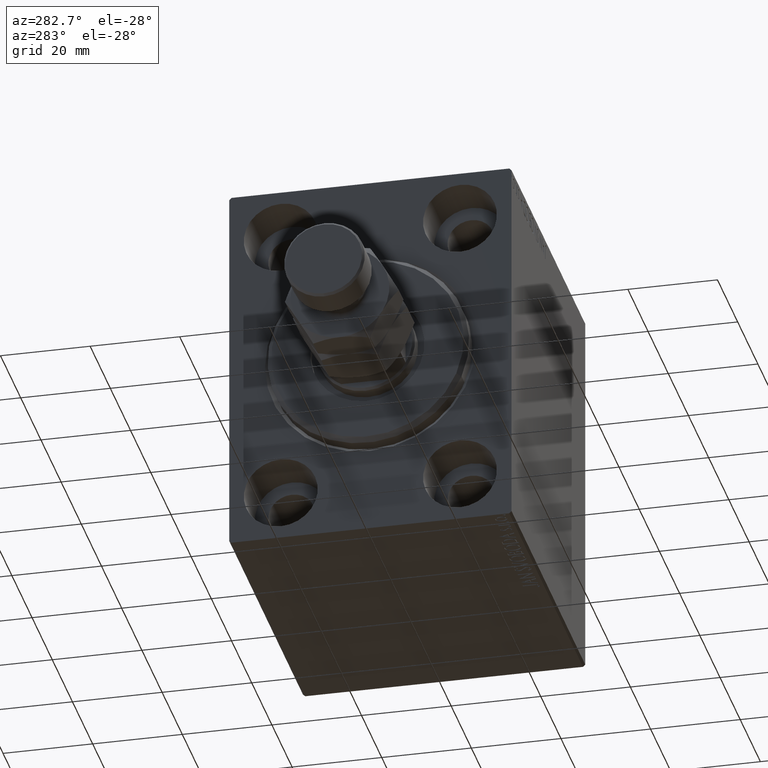
[diagram: clean part render]
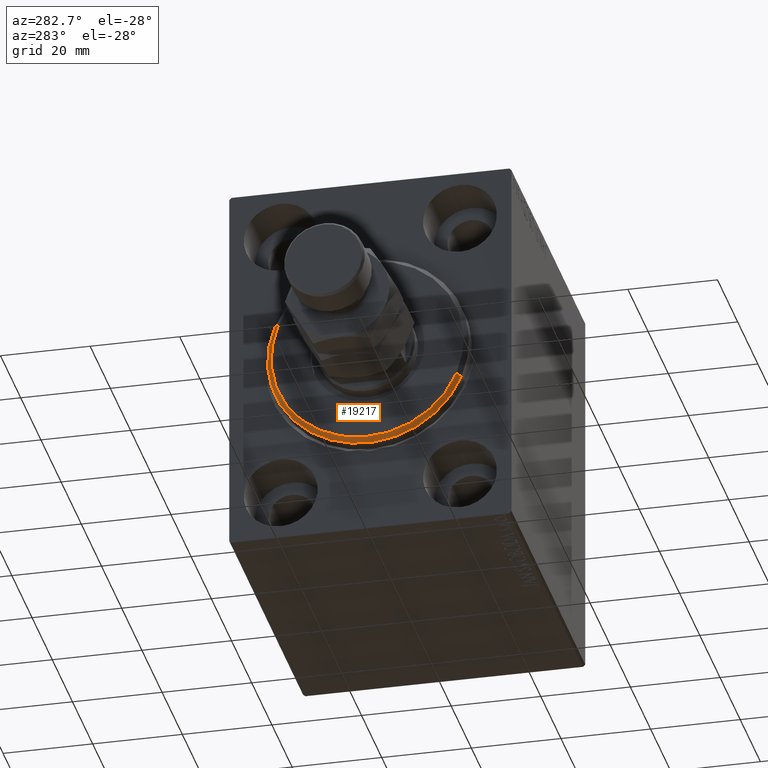
[diagram: same view with one face highlighted and labeled with its STEP entity id]
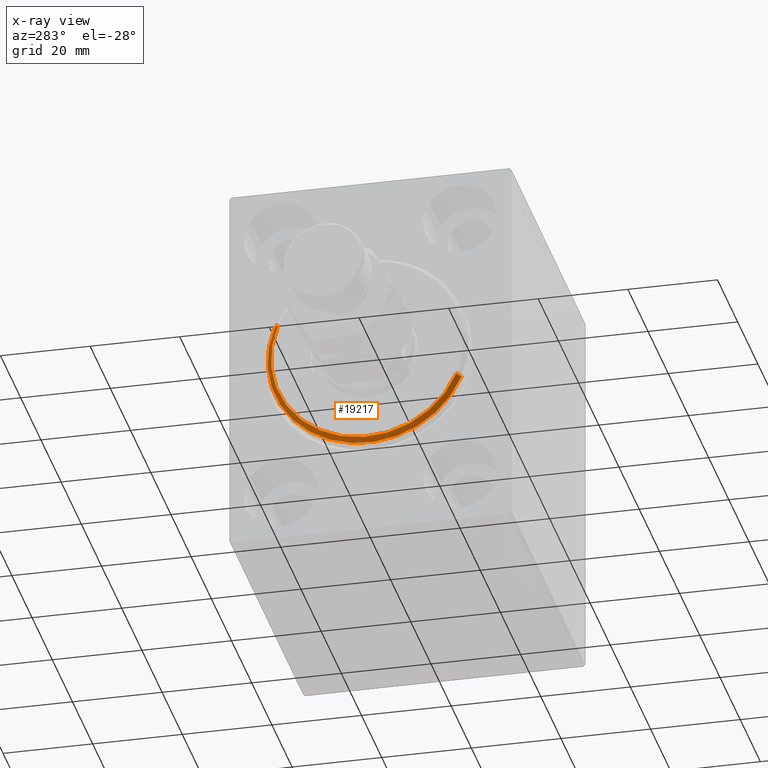
[diagram: x-ray of the same camera — body ghosted, the highlighted face saturated]
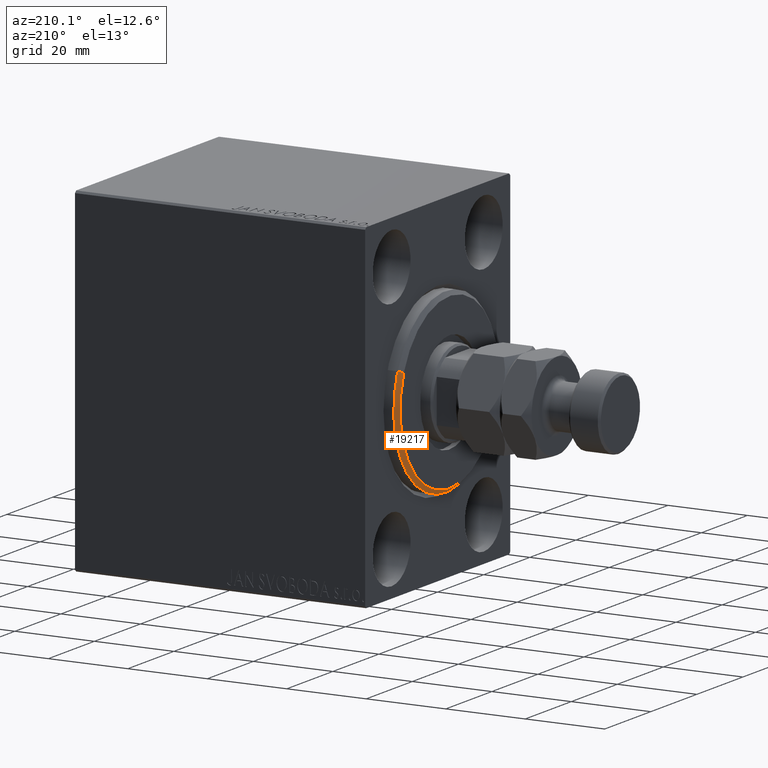
[diagram: same view with one face highlighted and labeled with its STEP entity id]
A machine part, auxiliary view. The second image highlights one B-rep face of the part: STEP entity #19217.
The next image is the same camera in x-ray: the body ghosted, the highlighted face saturated — about 0% of this face is hidden behind the body in this view.
A second angle (auxiliary view) of the same face is appended — the face is thin or edge-on in the first view.
In plain terms, the highlighted conical surface has half-angle 45 deg.
Its self-contained STEP definition (entity closure, byte-faithful):
#404 = VECTOR ( 'NONE', #23586, 1000.000000000000000 ) ;
#1020 = EDGE_CURVE ( 'NONE', #19093, #23329, #1569, .T. ) ;
#1505 = ORIENTED_EDGE ( 'NONE', *, *, #30005, .F. ) ;
#1569 = CIRCLE ( 'NONE', #24260, 21.50000000000000355 ) ;
#3224 = CARTESIAN_POINT ( 'NONE',  ( 3.000000000000000000, 0.000000000000000000, 21.50000000000000355 ) ) ;
#4687 = LINE ( 'NONE', #23026, #42412 ) ;
#7160 = CIRCLE ( 'NONE', #17402, 22.50000000000000355 ) ;
#9717 = ORIENTED_EDGE ( 'NONE', *, *, #33978, .F. ) ;
#10906 = CARTESIAN_POINT ( 'NONE',  ( 1.999999999999992228, 0.000000000000000000, 0.000000000000000000 ) ) ;
#14846 = CARTESIAN_POINT ( 'NONE',  ( 3.000000000000000000, 2.694222958124177598E-15, -21.50000000000000355 ) ) ;
#15690 = CONICAL_SURFACE ( 'NONE', #21527, 21.50000000000000355, 0.7853981633974431720 ) ;
#17402 = AXIS2_PLACEMENT_3D ( 'NONE', #10906, #39122, #38673 ) ;
#18139 = CARTESIAN_POINT ( 'NONE',  ( 1.999999999999992228, 2.755455298081545172E-15, -22.50000000000000355 ) ) ;
#19093 = VERTEX_POINT ( 'NONE', #14846 ) ;
#19217 = ADVANCED_FACE ( 'NONE', ( #20749 ), #15690, .T. ) ;
#20371 = LINE ( 'NONE', #27033, #404 ) ;
#20749 = FACE_OUTER_BOUND ( 'NONE', #35752, .T. ) ;
#21527 = AXIS2_PLACEMENT_3D ( 'NONE', #31323, #41887, #28335 ) ;
#22785 = CARTESIAN_POINT ( 'NONE',  ( 3.000000000000000000, 0.000000000000000000, 0.000000000000000000 ) ) ;
#23026 = CARTESIAN_POINT ( 'NONE',  ( 3.000000000000000000, 2.632990618166810024E-15, -21.50000000000000355 ) ) ;
#23329 = VERTEX_POINT ( 'NONE', #3224 ) ;
#23586 = DIRECTION ( 'NONE',  ( -0.7071067811865512365, 0.000000000000000000, 0.7071067811865439090 ) ) ;
#24260 = AXIS2_PLACEMENT_3D ( 'NONE', #22785, #37017, #36793 ) ;
#27033 = CARTESIAN_POINT ( 'NONE',  ( 3.000000000000000000, 0.000000000000000000, 21.50000000000000355 ) ) ;
#28335 = DIRECTION ( 'NONE',  ( 0.000000000000000000, 0.000000000000000000, 1.000000000000000000 ) ) ;
#30005 = EDGE_CURVE ( 'NONE', #42934, #32142, #7160, .T. ) ;
#31323 = CARTESIAN_POINT ( 'NONE',  ( 3.000000000000000000, 0.000000000000000000, 0.000000000000000000 ) ) ;
#32142 = VERTEX_POINT ( 'NONE', #18139 ) ;
#32920 = DIRECTION ( 'NONE',  ( -0.7071067811865512365, 8.659560562354888485E-17, -0.7071067811865439090 ) ) ;
#33978 = EDGE_CURVE ( 'NONE', #23329, #42934, #20371, .T. ) ;
#34041 = ORIENTED_EDGE ( 'NONE', *, *, #1020, .F. ) ;
#35752 = EDGE_LOOP ( 'NONE', ( #34041, #40029, #1505, #9717 ) ) ;
#36793 = DIRECTION ( 'NONE',  ( 0.000000000000000000, 0.000000000000000000, -1.000000000000000000 ) ) ;
#36795 = CARTESIAN_POINT ( 'NONE',  ( 1.999999999999992228, 0.000000000000000000, 22.50000000000000355 ) ) ;
#37017 = DIRECTION ( 'NONE',  ( 1.000000000000000000, -0.000000000000000000, 0.000000000000000000 ) ) ;
#38673 = DIRECTION ( 'NONE',  ( 0.000000000000000000, 0.000000000000000000, -1.000000000000000000 ) ) ;
#39122 = DIRECTION ( 'NONE',  ( -1.000000000000000000, 0.000000000000000000, 0.000000000000000000 ) ) ;
#40029 = ORIENTED_EDGE ( 'NONE', *, *, #45336, .T. ) ;
#41887 = DIRECTION ( 'NONE',  ( -1.000000000000000000, 0.000000000000000000, 0.000000000000000000 ) ) ;
#42412 = VECTOR ( 'NONE', #32920, 1000.000000000000000 ) ;
#42934 = VERTEX_POINT ( 'NONE', #36795 ) ;
#45336 = EDGE_CURVE ( 'NONE', #19093, #32142, #4687, .T. ) ;